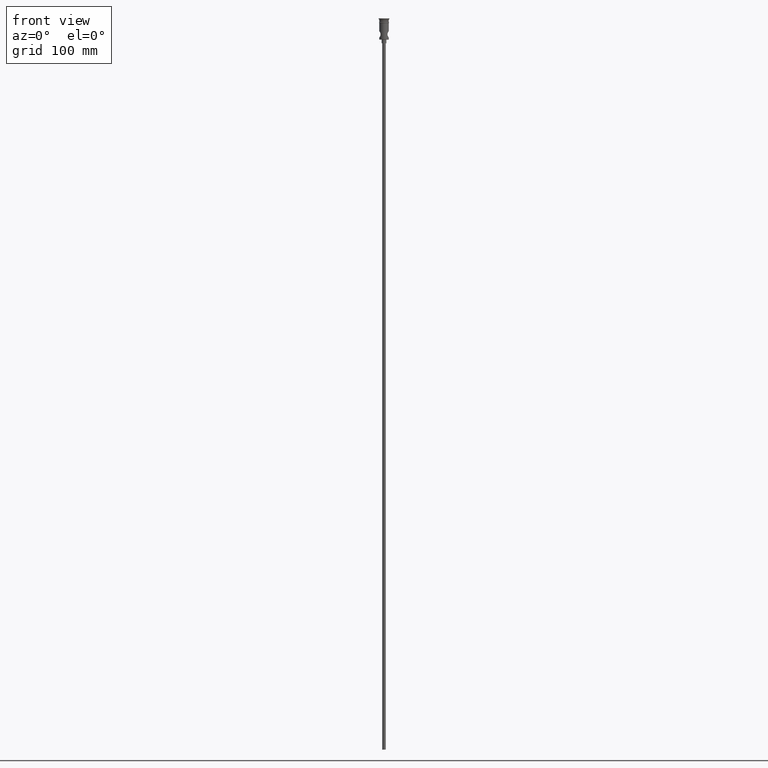
[diagram: clean part render]
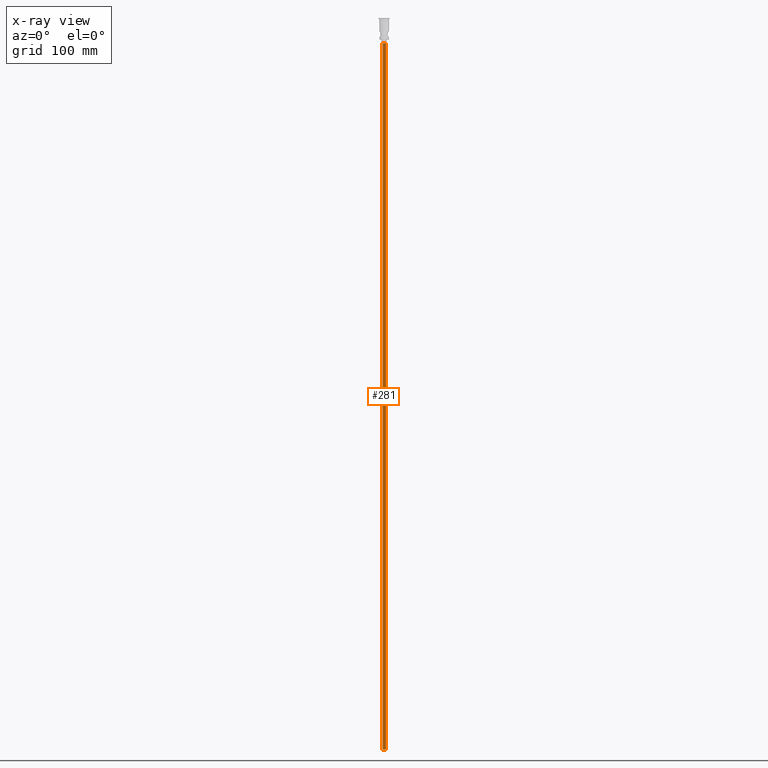
[diagram: x-ray — body ghosted, one internal face saturated and labeled with its STEP entity id]
A machine part, front view, then the same camera in x-ray: the body is ghosted and one INTERNAL B-rep face — a face not visible from any outside direction — is saturated and labeled: STEP entity #281.
In plain terms, the highlighted cylindrical surface (edge-blend (fillet) strip) has radius 1.5 mm, axis along (-0, -0, 1).
Its self-contained STEP definition (entity closure, byte-faithful):
#8 = CARTESIAN_POINT ( 'NONE',  ( 1.500000000000000222, 0.000000000000000000, -618.0000000000000000 ) ) ;
#10 = ORIENTED_EDGE ( 'NONE', *, *, #1208, .F. ) ;
#19 = DIRECTION ( 'NONE',  ( 0.000000000000000000, 0.000000000000000000, -1.000000000000000000 ) ) ;
#29 = EDGE_LOOP ( 'NONE', ( #10, #54, #1072, #642 ) ) ;
#54 = ORIENTED_EDGE ( 'NONE', *, *, #859, .T. ) ;
#129 = LINE ( 'NONE', #571, #1427 ) ;
#164 = DIRECTION ( 'NONE',  ( -0.000000000000000000, -0.000000000000000000, 1.000000000000000000 ) ) ;
#169 = EDGE_CURVE ( 'NONE', #1052, #314, #1131, .T. ) ;
#177 = CIRCLE ( 'NONE', #1307, 1.500000000000000222 ) ;
#281 = ADVANCED_FACE ( 'NONE', ( #1351 ), #371, .T. ) ;
#314 = VERTEX_POINT ( 'NONE', #621 ) ;
#318 = DIRECTION ( 'NONE',  ( -0.000000000000000000, -0.000000000000000000, 1.000000000000000000 ) ) ;
#358 = CARTESIAN_POINT ( 'NONE',  ( 0.000000000000000000, 0.000000000000000000, -618.0000000000000000 ) ) ;
#371 = CYLINDRICAL_SURFACE ( 'NONE', #490, 1.500000000000000222 ) ;
#392 = CARTESIAN_POINT ( 'NONE',  ( -1.500000000000000222, 1.836970198721030181E-16, -618.0000000000000000 ) ) ;
#490 = AXIS2_PLACEMENT_3D ( 'NONE', #822, #164, #969 ) ;
#501 = VERTEX_POINT ( 'NONE', #804 ) ;
#553 = DIRECTION ( 'NONE',  ( 0.000000000000000000, 0.000000000000000000, -1.000000000000000000 ) ) ;
#571 = CARTESIAN_POINT ( 'NONE',  ( 1.500000000000000222, 0.000000000000000000, -618.0000000000000000 ) ) ;
#604 = VERTEX_POINT ( 'NONE', #8 ) ;
#621 = CARTESIAN_POINT ( 'NONE',  ( 1.500000000000000222, 0.000000000000000000, -20.99999999999999645 ) ) ;
#635 = VECTOR ( 'NONE', #836, 1000.000000000000000 ) ;
#642 = ORIENTED_EDGE ( 'NONE', *, *, #734, .F. ) ;
#734 = EDGE_CURVE ( 'NONE', #604, #314, #129, .T. ) ;
#804 = CARTESIAN_POINT ( 'NONE',  ( -1.500000000000000222, 1.836970198721030181E-16, -618.0000000000000000 ) ) ;
#822 = CARTESIAN_POINT ( 'NONE',  ( 0.000000000000000000, 0.000000000000000000, -618.0000000000000000 ) ) ;
#836 = DIRECTION ( 'NONE',  ( -0.000000000000000000, -0.000000000000000000, 1.000000000000000000 ) ) ;
#859 = EDGE_CURVE ( 'NONE', #501, #1052, #1281, .T. ) ;
#969 = DIRECTION ( 'NONE',  ( 1.000000000000000000, 0.000000000000000000, 0.000000000000000000 ) ) ;
#972 = CARTESIAN_POINT ( 'NONE',  ( -1.500000000000000222, 1.836970198721030181E-16, -20.99999999999999645 ) ) ;
#999 = DIRECTION ( 'NONE',  ( -1.000000000000000000, 0.000000000000000000, 0.000000000000000000 ) ) ;
#1052 = VERTEX_POINT ( 'NONE', #972 ) ;
#1061 = AXIS2_PLACEMENT_3D ( 'NONE', #1093, #553, #999 ) ;
#1072 = ORIENTED_EDGE ( 'NONE', *, *, #169, .T. ) ;
#1093 = CARTESIAN_POINT ( 'NONE',  ( 0.000000000000000000, 0.000000000000000000, -20.99999999999999645 ) ) ;
#1131 = CIRCLE ( 'NONE', #1061, 1.500000000000000222 ) ;
#1208 = EDGE_CURVE ( 'NONE', #501, #604, #177, .T. ) ;
#1281 = LINE ( 'NONE', #392, #635 ) ;
#1307 = AXIS2_PLACEMENT_3D ( 'NONE', #358, #19, #1340 ) ;
#1340 = DIRECTION ( 'NONE',  ( -1.000000000000000000, 0.000000000000000000, 0.000000000000000000 ) ) ;
#1351 = FACE_OUTER_BOUND ( 'NONE', #29, .T. ) ;
#1427 = VECTOR ( 'NONE', #318, 1000.000000000000000 ) ;